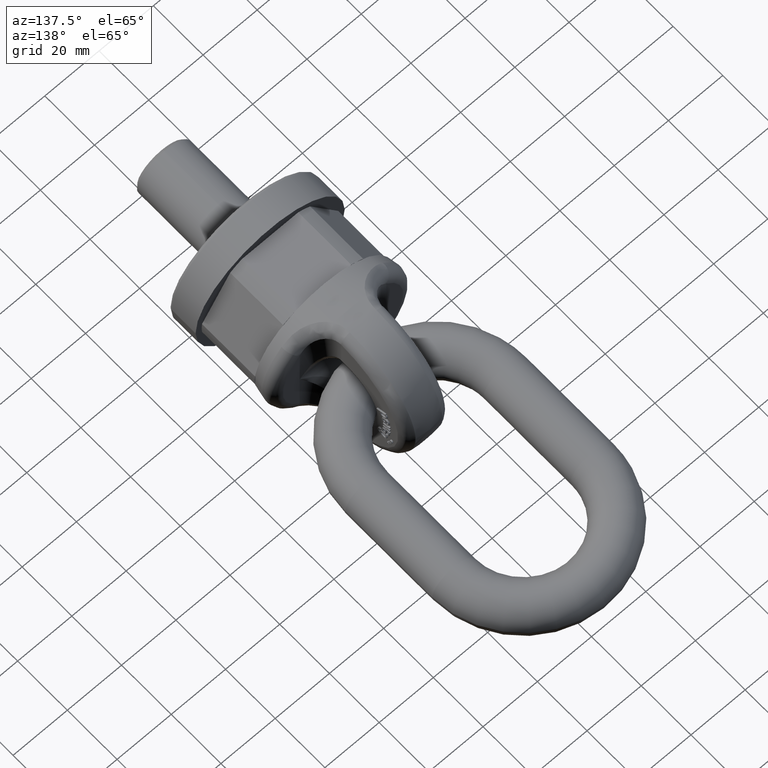
[diagram: clean part render]
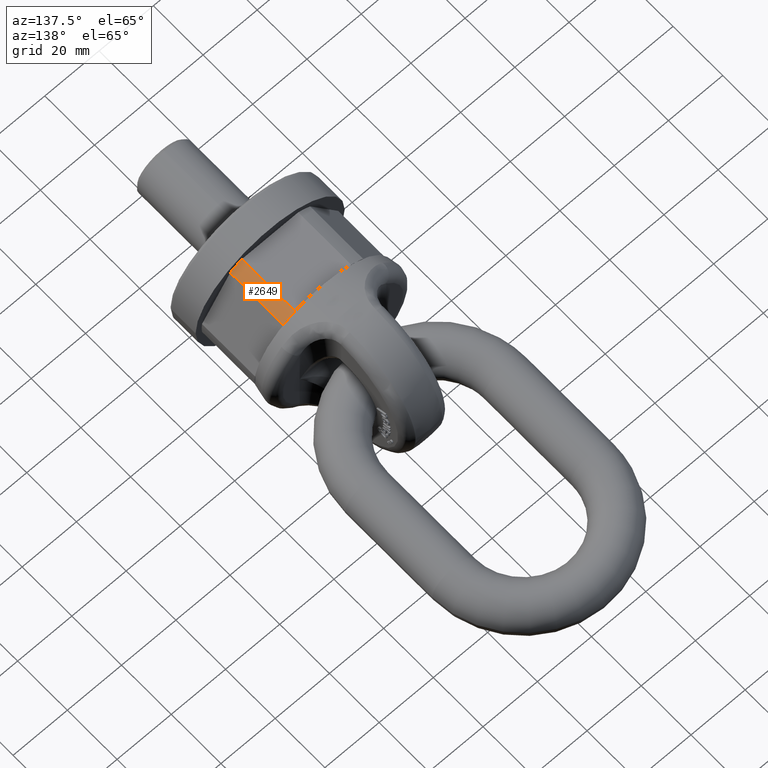
[diagram: same view with one face highlighted and labeled with its STEP entity id]
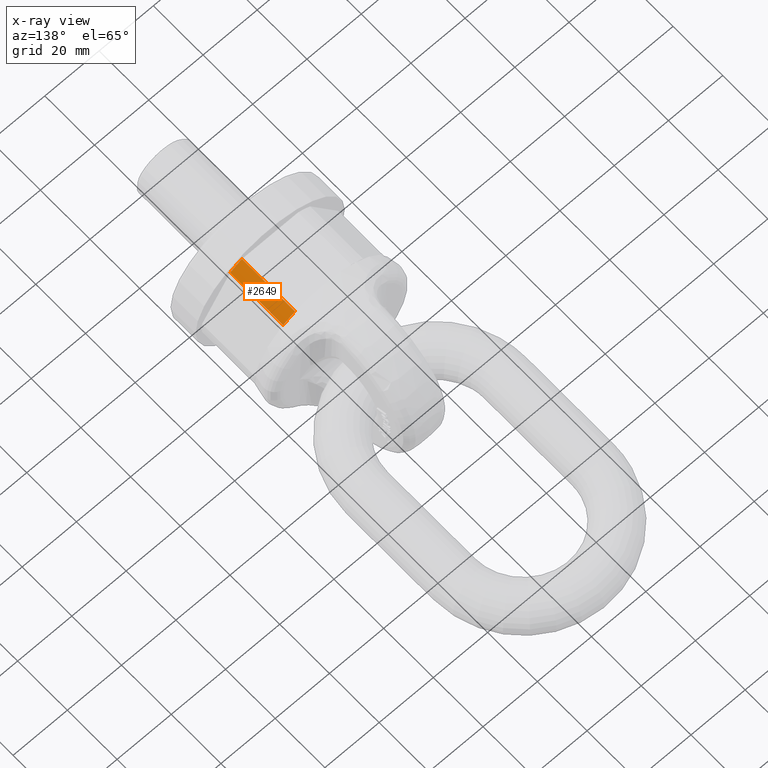
[diagram: x-ray of the same camera — body ghosted, the highlighted face saturated]
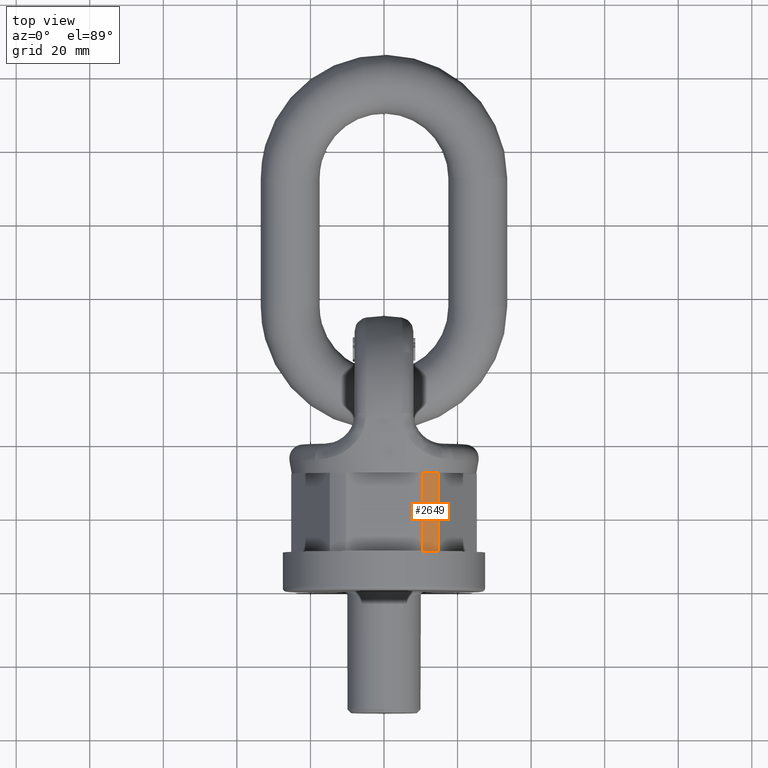
[diagram: same view with one face highlighted and labeled with its STEP entity id]
A machine part, auxiliary view. The second image highlights one B-rep face of the part: STEP entity #2649.
The next image is the same camera in x-ray: the body ghosted, the highlighted face saturated — about 0% of this face is hidden behind the body in this view.
A second angle (top view) of the same face is appended — the face is thin or edge-on in the first view.
In plain terms, the highlighted cylindrical surface (partial cylindrical patch) has radius 25.2302 mm, axis along (-0, 1, 0).
Its self-contained STEP definition (entity closure, byte-faithful):
#1807=FACE_OUTER_BOUND('',#3072,.T.);
#2015=CYLINDRICAL_SURFACE('',#5624,25.2302067635866);
#2051=LINE('',#6621,#2307);
#2055=LINE('',#6629,#2311);
#2307=VECTOR('',#5855,1.);
#2311=VECTOR('',#5861,1.);
#2649=ADVANCED_FACE('',(#1807),#2015,.T.);
#3072=EDGE_LOOP('',(#3404,#3405,#3406,#3407));
#3404=ORIENTED_EDGE('',*,*,#4937,.F.);
#3405=ORIENTED_EDGE('',*,*,#4961,.T.);
#3406=ORIENTED_EDGE('',*,*,#4970,.T.);
#3407=ORIENTED_EDGE('',*,*,#4965,.T.);
#4538=VERTEX_POINT('',#6570);
#4540=VERTEX_POINT('',#6573);
#4559=VERTEX_POINT('',#6622);
#4562=VERTEX_POINT('',#6630);
#4937=EDGE_CURVE('',#4538,#4540,#5532,.T.);
#4961=EDGE_CURVE('',#4538,#4559,#2051,.T.);
#4965=EDGE_CURVE('',#4562,#4540,#2055,.T.);
#4970=EDGE_CURVE('',#4559,#4562,#5542,.T.);
#5532=CIRCLE('',#5600,25.2302067635866);
#5542=CIRCLE('',#5618,25.2302067635866);
#5600=AXIS2_PLACEMENT_3D('',#6572,#5812,#5813);
#5618=AXIS2_PLACEMENT_3D('',#6636,#5871,#5872);
#5624=AXIS2_PLACEMENT_3D('',#6642,#5883,#5884);
#5812=DIRECTION('',(4.11404784088564E-17,-1.,0.));
#5813=DIRECTION('',(-1.,-6.87558168758425E-17,0.));
#5855=DIRECTION('',(-2.4492935982947E-17,1.,0.));
#5861=DIRECTION('',(2.4492935982947E-17,-1.,0.));
#5871=DIRECTION('',(0.,-1.,0.));
#5872=DIRECTION('',(0.,0.,-1.));
#5883=DIRECTION('',(-2.4492935982947E-17,1.,0.));
#5884=DIRECTION('',(-1.,-2.44929359829471E-17,0.));
#6570=CARTESIAN_POINT('',(14.7329470712957,10.6666666666667,20.4817871272927));
#6572=CARTESIAN_POINT('',(-2.61257983818102E-16,10.6666666666667,0.));
#6573=CARTESIAN_POINT('',(10.3712744314926,10.6666666666667,23.));
#6621=CARTESIAN_POINT('',(14.7329470712957,-1.27011480356063E-16,20.4817871272927));
#6622=CARTESIAN_POINT('',(14.7329470712957,32.,20.4817871272927));
#6629=CARTESIAN_POINT('',(10.3712744314926,2.54022960712125E-16,23.));
#6630=CARTESIAN_POINT('',(10.3712744314926,32.,23.));
#6636=CARTESIAN_POINT('',(-7.83773951454306E-16,32.,0.));
#6642=CARTESIAN_POINT('',(0.,0.,0.));